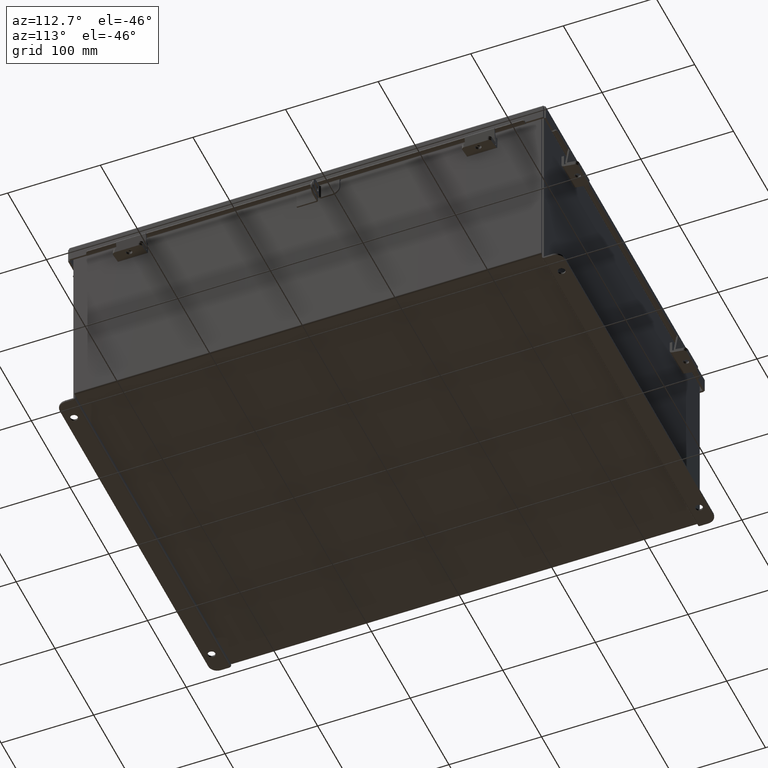
[diagram: clean part render]
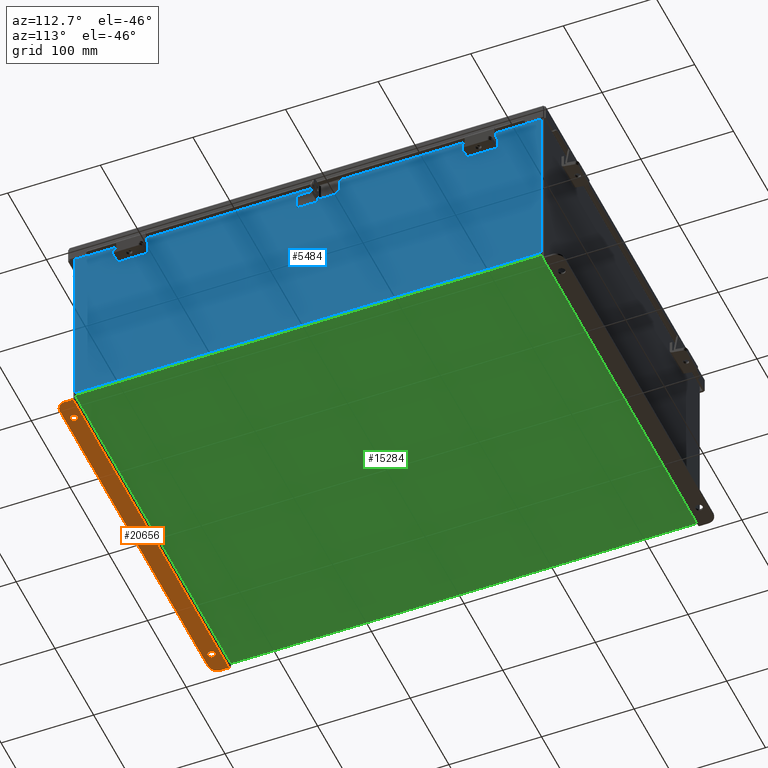
[diagram: same view with three faces highlighted in distinct colors, each labeled with its STEP entity id]
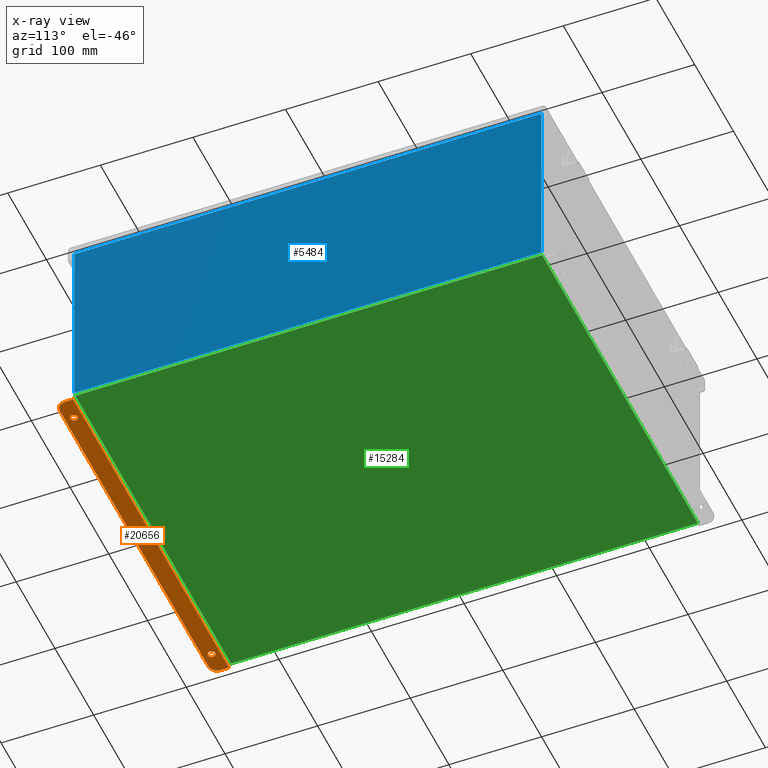
[diagram: x-ray of the same camera — body ghosted, the three highlighted faces saturated]
A machine part, auxiliary view with three faces highlighted in distinct colors.
The next image is the same camera in x-ray (body ghosted, the three faces saturated) — at least one of them is partly hidden behind the body in this view.
Their STEP definitions:

[orange] entity #20656 — the highlighted planar face has unit normal (0, -0, 1).
#405 = ORIENTED_EDGE ( 'NONE', *, *, #9560, .T. ) ;
#651 = DIRECTION ( 'NONE',  ( -0.0000000000000000000, -3.702694488566362300E-015, -1.000000000000000000 ) ) ;
#911 = EDGE_CURVE ( 'NONE', #20289, #4420, #7432, .T. ) ;
#1104 = DIRECTION ( 'NONE',  ( 0.0000000000000000000, -1.000000000000000000, 4.370956789862820400E-015 ) ) ;
#1587 = EDGE_LOOP ( 'NONE', ( #2346, #20681 ) ) ;
#1755 = DIRECTION ( 'NONE',  ( 0.0000000000000000000, 1.000000000000000000, -3.502369222646487000E-015 ) ) ;
#1875 = CARTESIAN_POINT ( 'NONE',  ( -7.925299999999998200, 0.3628000000000008400, -4.187000000000005600 ) ) ;
#1914 = DIRECTION ( 'NONE',  ( 0.0000000000000000000, -3.362274453740631800E-015, -1.000000000000000000 ) ) ;
#1940 = EDGE_CURVE ( 'NONE', #7943, #2434, #2096, .T. ) ;
#1987 = CARTESIAN_POINT ( 'NONE',  ( 6.987799999999999100, 0.3628000000000161700, -4.187000000000001200 ) ) ;
#1997 = AXIS2_PLACEMENT_3D ( 'NONE', #6521, #18646, #8273 ) ;
#2096 = LINE ( 'NONE', #2819, #6039 ) ;
#2346 = ORIENTED_EDGE ( 'NONE', *, *, #12653, .F. ) ;
#2434 = VERTEX_POINT ( 'NONE', #3022 ) ;
#2723 = ORIENTED_EDGE ( 'NONE', *, *, #9373, .F. ) ;
#2819 = CARTESIAN_POINT ( 'NONE',  ( -2.035385365534024800E-024, 0.7378000000000011200, -4.187000000000002900 ) ) ;
#2867 = AXIS2_PLACEMENT_3D ( 'NONE', #16771, #3202, #1104 ) ;
#2900 = VECTOR ( 'NONE', #16602, 39.37007874015748100 ) ;
#3022 = CARTESIAN_POINT ( 'NONE',  ( 7.550299999999999100, 0.7378000000000163300, -4.187000000000002900 ) ) ;
#3031 = CARTESIAN_POINT ( 'NONE',  ( -7.550299999999999100, 0.7377999999999989000, -4.187000000000002900 ) ) ;
#3202 = DIRECTION ( 'NONE',  ( -0.0000000000000000000, -3.702694488566362300E-015, -1.000000000000000000 ) ) ;
#3520 = FACE_BOUND ( 'NONE', #17559, .T. ) ;
#4322 = DIRECTION ( 'NONE',  ( 0.0000000000000000000, 3.702694488566362300E-015, 1.000000000000000000 ) ) ;
#4420 = VERTEX_POINT ( 'NONE', #1875 ) ;
#4507 = VERTEX_POINT ( 'NONE', #19652 ) ;
#6039 = VECTOR ( 'NONE', #14778, 39.37007874015748100 ) ;
#6521 = CARTESIAN_POINT ( 'NONE',  ( -6.987800000000000900, 0.3628000000000008400, -4.187000000000001200 ) ) ;
#6618 = DIRECTION ( 'NONE',  ( 0.0000000000000000000, 1.000000000000000000, -3.502369222646487000E-015 ) ) ;
#6701 = DIRECTION ( 'NONE',  ( 0.0000000000000000000, -3.362274453740631800E-015, -1.000000000000000000 ) ) ;
#6763 = CIRCLE ( 'NONE', #20027, 0.1560000000000001900 ) ;
#6856 = ORIENTED_EDGE ( 'NONE', *, *, #17109, .F. ) ;
#7232 = VECTOR ( 'NONE', #19373, 39.37007874015748100 ) ;
#7248 = CARTESIAN_POINT ( 'NONE',  ( 7.925300000000000000, 0.01300000000001759100, -4.187000000000000300 ) ) ;
#7432 = LINE ( 'NONE', #20125, #2900 ) ;
#7514 = FACE_OUTER_BOUND ( 'NONE', #10914, .T. ) ;
#7674 = PLANE ( 'NONE',  #14766 ) ;
#7713 = CIRCLE ( 'NONE', #19133, 0.3750000000000000600 ) ;
#7943 = VERTEX_POINT ( 'NONE', #3031 ) ;
#8093 = EDGE_CURVE ( 'NONE', #2434, #18850, #19006, .T. ) ;
#8124 = LINE ( 'NONE', #15458, #8684 ) ;
#8140 = CARTESIAN_POINT ( 'NONE',  ( 6.987799999999999100, 0.3628000000000161700, -4.187000000000001200 ) ) ;
#8273 = DIRECTION ( 'NONE',  ( 0.0000000000000000000, 1.000000000000000000, -3.502369222646487000E-015 ) ) ;
#8684 = VECTOR ( 'NONE', #17192, 39.37007874015748100 ) ;
#9281 = CIRCLE ( 'NONE', #1997, 0.1560000000000001900 ) ;
#9373 = EDGE_CURVE ( 'NONE', #20395, #17352, #11912, .T. ) ;
#9560 = EDGE_CURVE ( 'NONE', #18850, #10877, #8124, .T. ) ;
#9925 = EDGE_CURVE ( 'NONE', #17352, #20395, #6763, .T. ) ;
#9936 = CARTESIAN_POINT ( 'NONE',  ( 7.925300000000000000, 0.3628000000000161700, -4.187000000000001200 ) ) ;
#10877 = VERTEX_POINT ( 'NONE', #20754 ) ;
#10914 = EDGE_LOOP ( 'NONE', ( #20070, #13961, #17206, #20857, #405, #6856 ) ) ;
#10929 = CARTESIAN_POINT ( 'NONE',  ( -7.550299999999999100, 0.3628000000000008400, -4.187000000000001200 ) ) ;
#11235 = AXIS2_PLACEMENT_3D ( 'NONE', #1987, #1914, #1755 ) ;
#11643 = VERTEX_POINT ( 'NONE', #22264 ) ;
#11660 = CARTESIAN_POINT ( 'NONE',  ( 6.987799999999999100, 0.5188000000000163600, -4.187000000000001200 ) ) ;
#11912 = CIRCLE ( 'NONE', #11235, 0.1560000000000001900 ) ;
#12653 = EDGE_CURVE ( 'NONE', #4507, #11643, #18309, .T. ) ;
#12659 = DIRECTION ( 'NONE',  ( 0.0000000000000000000, -1.000000000000000000, 4.370956789862820400E-015 ) ) ;
#13671 = CARTESIAN_POINT ( 'NONE',  ( -7.925300000000000000, 0.01300000000000010700, -4.187000000000000300 ) ) ;
#13961 = ORIENTED_EDGE ( 'NONE', *, *, #22256, .T. ) ;
#14631 = CARTESIAN_POINT ( 'NONE',  ( -2.035385365534024800E-024, -1.529834876451987200E-014, -4.187000000000000300 ) ) ;
#14766 = AXIS2_PLACEMENT_3D ( 'NONE', #14631, #4322, #16388 ) ;
#14778 = DIRECTION ( 'NONE',  ( 1.000000000000000000, 4.910036603141682400E-031, 0.0000000000000000000 ) ) ;
#15458 = CARTESIAN_POINT ( 'NONE',  ( 7.925300000000000000, 2.185478394931410600E-015, -4.187000000000000300 ) ) ;
#16388 = DIRECTION ( 'NONE',  ( -4.919856193148104900E-031, -1.000000000000000000, 3.702694488566362300E-015 ) ) ;
#16602 = DIRECTION ( 'NONE',  ( 4.919856193148104900E-031, 1.000000000000000000, -3.702694488566362300E-015 ) ) ;
#16771 = CARTESIAN_POINT ( 'NONE',  ( 7.550299999999999100, 0.3628000000000161700, -4.187000000000001200 ) ) ;
#17109 = EDGE_CURVE ( 'NONE', #20289, #10877, #19436, .T. ) ;
#17192 = DIRECTION ( 'NONE',  ( -4.919856193148104900E-031, -1.000000000000000000, 3.702694488566362300E-015 ) ) ;
#17206 = ORIENTED_EDGE ( 'NONE', *, *, #1940, .T. ) ;
#17352 = VERTEX_POINT ( 'NONE', #11660 ) ;
#17354 = EDGE_CURVE ( 'NONE', #11643, #4507, #9281, .T. ) ;
#17356 = CARTESIAN_POINT ( 'NONE',  ( 6.987799999999999100, 0.2068000000000159700, -4.187000000000000300 ) ) ;
#17559 = EDGE_LOOP ( 'NONE', ( #21235, #2723 ) ) ;
#17819 = FACE_BOUND ( 'NONE', #1587, .T. ) ;
#17978 = DIRECTION ( 'NONE',  ( 0.0000000000000000000, 1.000000000000000000, -3.502369222646487000E-015 ) ) ;
#17995 = DIRECTION ( 'NONE',  ( 0.0000000000000000000, -3.362274453740631800E-015, -1.000000000000000000 ) ) ;
#18051 = CARTESIAN_POINT ( 'NONE',  ( -6.987800000000000900, 0.3628000000000008400, -4.187000000000001200 ) ) ;
#18309 = CIRCLE ( 'NONE', #21119, 0.1560000000000001900 ) ;
#18646 = DIRECTION ( 'NONE',  ( 0.0000000000000000000, -3.362274453740631800E-015, -1.000000000000000000 ) ) ;
#18850 = VERTEX_POINT ( 'NONE', #9936 ) ;
#19006 = CIRCLE ( 'NONE', #2867, 0.3750000000000000600 ) ;
#19133 = AXIS2_PLACEMENT_3D ( 'NONE', #10929, #651, #12659 ) ;
#19373 = DIRECTION ( 'NONE',  ( 1.000000000000000000, 3.446996320220427900E-017, -0.0000000000000000000 ) ) ;
#19436 = LINE ( 'NONE', #7248, #7232 ) ;
#19652 = CARTESIAN_POINT ( 'NONE',  ( -6.987800000000000900, 0.5188000000000010400, -4.187000000000001200 ) ) ;
#20027 = AXIS2_PLACEMENT_3D ( 'NONE', #8140, #6701, #6618 ) ;
#20070 = ORIENTED_EDGE ( 'NONE', *, *, #911, .T. ) ;
#20125 = CARTESIAN_POINT ( 'NONE',  ( -7.925299999999998200, -1.529834876451987200E-014, -4.187000000000000300 ) ) ;
#20289 = VERTEX_POINT ( 'NONE', #13671 ) ;
#20395 = VERTEX_POINT ( 'NONE', #17356 ) ;
#20656 = ADVANCED_FACE ( 'NONE', ( #17819, #3520, #7514 ), #7674, .F. ) ;
#20681 = ORIENTED_EDGE ( 'NONE', *, *, #17354, .F. ) ;
#20754 = CARTESIAN_POINT ( 'NONE',  ( 7.925300000000000000, 0.01300000000001759100, -4.187000000000000300 ) ) ;
#20857 = ORIENTED_EDGE ( 'NONE', *, *, #8093, .T. ) ;
#21119 = AXIS2_PLACEMENT_3D ( 'NONE', #18051, #17995, #17978 ) ;
#21235 = ORIENTED_EDGE ( 'NONE', *, *, #9925, .F. ) ;
#22256 = EDGE_CURVE ( 'NONE', #4420, #7943, #7713, .T. ) ;
#22264 = CARTESIAN_POINT ( 'NONE',  ( -6.987800000000000900, 0.2068000000000006800, -4.187000000000000300 ) ) ;

[blue] entity #5484 — the highlighted planar face has unit normal (-1, 0, 0).
#528 = DIRECTION ( 'NONE',  ( -1.000000000000000000, 0.0000000000000000000, 3.479795166820705900E-015 ) ) ;
#1377 = VERTEX_POINT ( 'NONE', #7924 ) ;
#1454 = CARTESIAN_POINT ( 'NONE',  ( 8.000000000000003600, -9.925300000000000000, 0.01299999999999984300 ) ) ;
#1634 = ORIENTED_EDGE ( 'NONE', *, *, #1665, .F. ) ;
#1665 = EDGE_CURVE ( 'NONE', #10385, #14270, #16630, .T. ) ;
#2683 = DIRECTION ( 'NONE',  ( -0.0000000000000000000, -1.000000000000000000, -0.0000000000000000000 ) ) ;
#3966 = VECTOR ( 'NONE', #2683, 39.37007874015748100 ) ;
#5133 = LINE ( 'NONE', #10061, #18945 ) ;
#5484 = ADVANCED_FACE ( 'NONE', ( #7374 ), #17388, .F. ) ;
#5886 = ORIENTED_EDGE ( 'NONE', *, *, #15859, .T. ) ;
#5905 = CARTESIAN_POINT ( 'NONE',  ( 8.000000000000003600, 9.925299999999998200, -2.533789014123604100E-014 ) ) ;
#5999 = EDGE_LOOP ( 'NONE', ( #9327, #15815, #1634, #5886 ) ) ;
#6732 = CARTESIAN_POINT ( 'NONE',  ( 8.000000000000003600, 0.0000000000000000000, -2.809534920984090700E-014 ) ) ;
#7374 = FACE_OUTER_BOUND ( 'NONE', #5999, .T. ) ;
#7924 = CARTESIAN_POINT ( 'NONE',  ( 8.000000000000030200, -9.925300000000000000, 7.837599999999999200 ) ) ;
#8246 = DIRECTION ( 'NONE',  ( 3.479795166820705900E-015, 0.0000000000000000000, 1.000000000000000000 ) ) ;
#9327 = ORIENTED_EDGE ( 'NONE', *, *, #19585, .T. ) ;
#9638 = CARTESIAN_POINT ( 'NONE',  ( 8.000000000000030200, 9.925299999999992900, 7.837599999999999200 ) ) ;
#10061 = CARTESIAN_POINT ( 'NONE',  ( 8.000000000000030200, 9.925299999999996500, 7.837599999999999200 ) ) ;
#10385 = VERTEX_POINT ( 'NONE', #16725 ) ;
#10506 = EDGE_CURVE ( 'NONE', #1377, #14270, #15398, .T. ) ;
#10768 = LINE ( 'NONE', #5905, #19457 ) ;
#10813 = VECTOR ( 'NONE', #22193, 39.37007874015748100 ) ;
#14270 = VERTEX_POINT ( 'NONE', #1454 ) ;
#15398 = LINE ( 'NONE', #22403, #10813 ) ;
#15815 = ORIENTED_EDGE ( 'NONE', *, *, #10506, .T. ) ;
#15859 = EDGE_CURVE ( 'NONE', #10385, #22435, #10768, .T. ) ;
#16162 = AXIS2_PLACEMENT_3D ( 'NONE', #6732, #528, #8246 ) ;
#16285 = DIRECTION ( 'NONE',  ( 3.479795166820706300E-015, -2.783836133456565100E-016, 1.000000000000000000 ) ) ;
#16419 = CARTESIAN_POINT ( 'NONE',  ( 8.000000000000003600, -9.925300000000000000, 0.01299999999999984300 ) ) ;
#16630 = LINE ( 'NONE', #16419, #3966 ) ;
#16725 = CARTESIAN_POINT ( 'NONE',  ( 8.000000000000003600, 9.925299999999992900, 0.01299999999999984300 ) ) ;
#17388 = PLANE ( 'NONE',  #16162 ) ;
#18945 = VECTOR ( 'NONE', #22234, 39.37007874015748100 ) ;
#19457 = VECTOR ( 'NONE', #16285, 39.37007874015748100 ) ;
#19585 = EDGE_CURVE ( 'NONE', #22435, #1377, #5133, .T. ) ;
#22193 = DIRECTION ( 'NONE',  ( -3.479795166820706300E-015, 0.0000000000000000000, -1.000000000000000000 ) ) ;
#22234 = DIRECTION ( 'NONE',  ( -0.0000000000000000000, -1.000000000000000000, -0.0000000000000000000 ) ) ;
#22403 = CARTESIAN_POINT ( 'NONE',  ( 8.000000000000003600, -9.925300000000000000, -2.809534920984090700E-014 ) ) ;
#22435 = VERTEX_POINT ( 'NONE', #9638 ) ;

[green] entity #15284 — the highlighted planar face has unit normal (0, 0, -1).
#96 = ORIENTED_EDGE ( 'NONE', *, *, #22421, .F. ) ;
#575 = CARTESIAN_POINT ( 'NONE',  ( -7.912299999999996600, -9.925299999999996500, -0.07469999999999994700 ) ) ;
#1021 = DIRECTION ( 'NONE',  ( -1.000000000000000000, -0.0000000000000000000, -0.0000000000000000000 ) ) ;
#1662 = CARTESIAN_POINT ( 'NONE',  ( 7.912300000000002800, 9.925299999999996500, -0.07469999999999994700 ) ) ;
#1688 = LINE ( 'NONE', #11675, #19493 ) ;
#2302 = VERTEX_POINT ( 'NONE', #11028 ) ;
#4775 = EDGE_CURVE ( 'NONE', #15254, #2302, #14163, .T. ) ;
#5856 = DIRECTION ( 'NONE',  ( 0.0000000000000000000, 0.0000000000000000000, -1.000000000000000000 ) ) ;
#6305 = EDGE_LOOP ( 'NONE', ( #96, #16964, #19342, #11705 ) ) ;
#6802 = CARTESIAN_POINT ( 'NONE',  ( -7.912299999999996600, -9.925299999999998200, -0.07469999999999994700 ) ) ;
#8283 = DIRECTION ( 'NONE',  ( 1.000000000000000000, -1.365923996832131600E-016, 0.0000000000000000000 ) ) ;
#8845 = CARTESIAN_POINT ( 'NONE',  ( 7.912300000000002800, 9.925299999999992900, -0.07469999999999994700 ) ) ;
#9605 = VECTOR ( 'NONE', #1021, 39.37007874015748100 ) ;
#9931 = LINE ( 'NONE', #1662, #19716 ) ;
#10990 = CARTESIAN_POINT ( 'NONE',  ( 7.912300000000002800, -9.925300000000000000, -0.07470000000000000300 ) ) ;
#11028 = CARTESIAN_POINT ( 'NONE',  ( -7.912299999999996600, 9.925299999999998200, -0.07470000000000000300 ) ) ;
#11473 = AXIS2_PLACEMENT_3D ( 'NONE', #17899, #5856, #17969 ) ;
#11675 = CARTESIAN_POINT ( 'NONE',  ( -7.999999999999996400, -9.925299999999998200, -0.07470000000000000300 ) ) ;
#11705 = ORIENTED_EDGE ( 'NONE', *, *, #4775, .T. ) ;
#12941 = FACE_OUTER_BOUND ( 'NONE', #6305, .T. ) ;
#13677 = DIRECTION ( 'NONE',  ( -0.0000000000000000000, -1.000000000000000000, -0.0000000000000000000 ) ) ;
#14163 = LINE ( 'NONE', #6802, #14686 ) ;
#14449 = DIRECTION ( 'NONE',  ( -0.0000000000000000000, 1.000000000000000000, -0.0000000000000000000 ) ) ;
#14686 = VECTOR ( 'NONE', #14449, 39.37007874015748100 ) ;
#14913 = EDGE_CURVE ( 'NONE', #15254, #19338, #1688, .T. ) ;
#15254 = VERTEX_POINT ( 'NONE', #575 ) ;
#15284 = ADVANCED_FACE ( 'NONE', ( #12941 ), #16161, .T. ) ;
#16161 = PLANE ( 'NONE',  #11473 ) ;
#16260 = VERTEX_POINT ( 'NONE', #8845 ) ;
#16462 = CARTESIAN_POINT ( 'NONE',  ( -7.999999999999996400, 9.925299999999998200, -0.07470000000000000300 ) ) ;
#16936 = EDGE_CURVE ( 'NONE', #16260, #19338, #9931, .T. ) ;
#16964 = ORIENTED_EDGE ( 'NONE', *, *, #16936, .T. ) ;
#17899 = CARTESIAN_POINT ( 'NONE',  ( 0.0000000000000000000, 0.0000000000000000000, -0.07470000000000000300 ) ) ;
#17969 = DIRECTION ( 'NONE',  ( -1.000000000000000000, 0.0000000000000000000, -0.0000000000000000000 ) ) ;
#18263 = LINE ( 'NONE', #16462, #9605 ) ;
#19338 = VERTEX_POINT ( 'NONE', #10990 ) ;
#19342 = ORIENTED_EDGE ( 'NONE', *, *, #14913, .F. ) ;
#19493 = VECTOR ( 'NONE', #8283, 39.37007874015748100 ) ;
#19716 = VECTOR ( 'NONE', #13677, 39.37007874015748100 ) ;
#22421 = EDGE_CURVE ( 'NONE', #16260, #2302, #18263, .T. ) ;